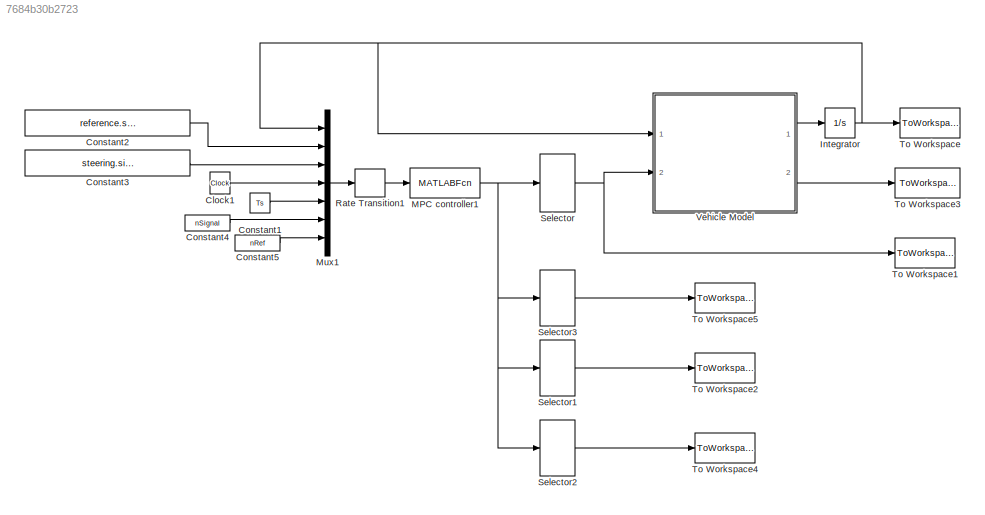
MODEL slx_7684b30b2723
KIND model
CONFIG AbsTol = auto
CONFIG EnableMultiTasking = off
CONFIG FixedStep = Ts
CONFIG MaxStep = auto
CONFIG MinStep = auto
CONFIG RelTol = 1e-3
CONFIG SampleTimeConstraint = Unconstrained
CONFIG Solver = FixedStepAuto
CONFIG SolverName = FixedStepAuto
CONFIG StartTime = 0.0
CONFIG StopTime = Tsim
BLOCK [Clock] Clock1
BLOCK [Constant] Constant1
  Value = Ts
BLOCK [Constant] Constant2
  SampleTime = Ts
  Value = reference.signals.values(:)
BLOCK [Constant] Constant3
  SampleTime = Ts
  Value = steering.signals.values
BLOCK [Constant] Constant4
  Value = nSignal
BLOCK [Constant] Constant5
  Value = nRef
BLOCK [Integrator] Integrator
  InitialCondition = x0
  Ports = [1, 1]
BLOCK [MATLABFcn] MPC controller1
  MATLABFcn = mpcControllerKoop(u(1:3), u(4:4+nSignal*nRef-1), u(4+nSignal*nRef:4+nSignal*nRef+nSignal-1), u(4+nSignal*nRef+nSignal),u(4+nSignal*nRef+nSignal+1),u(end-1),u(end))
  OutputDimensions = 5 + 3
  Ports = [1, 1]
BLOCK [Mux] Mux1
  DisplayOption = bar
  Inputs = 7
  Ports = [7, 1]
BLOCK [RateTransition] Rate Transition1
  OutPortSampleTime = Ts
BLOCK [Selector] Selector
  IndexOptions = Index vector (dialog)
  Indices = [1 2 3 4 5]
  InputPortWidth = 8
  OutputSizes = 1
  Ports = [1, 1]
BLOCK [Selector] Selector1
  IndexOptions = Index vector (dialog)
  Indices = 7
  InputPortWidth = 8
  OutputSizes = 1
  Ports = [1, 1]
BLOCK [Selector] Selector2
  IndexOptions = Index vector (dialog)
  Indices = 8
  InputPortWidth = 8
  OutputSizes = 1
  Ports = [1, 1]
BLOCK [Selector] Selector3
  IndexOptions = Index vector (dialog)
  Indices = 6
  InputPortWidth = 8
  OutputSizes = 1
  Ports = [1, 1]
BLOCK [ToWorkspace] To Workspace
  FixptAsFi = on
  MaxDataPoints = inf
  Ports = [1]
  SampleTime = Ts
  Save2DSignal = 3-D array (concatenate along third dimension)
  SaveFormat = Structure With Time
  VariableName = states
BLOCK [ToWorkspace] To Workspace1
  FixptAsFi = on
  MaxDataPoints = inf
  Ports = [1]
  SampleTime = Ts
  Save2DSignal = 3-D array (concatenate along third dimension)
  SaveFormat = Structure With Time
  VariableName = input
BLOCK [ToWorkspace] To Workspace2
  FixptAsFi = on
  MaxDataPoints = inf
  Ports = [1]
  SampleTime = Ts
  Save2DSignal = 3-D array (concatenate along third dimension)
  SaveFormat = Structure With Time
  VariableName = status_val
BLOCK [ToWorkspace] To Workspace3
  FixptAsFi = on
  MaxDataPoints = inf
  Ports = [1]
  SampleTime = Ts
  Save2DSignal = 3-D array (concatenate along third dimension)
  SaveFormat = Structure With Time
  VariableName = slipAngles
BLOCK [ToWorkspace] To Workspace4
  FixptAsFi = on
  MaxDataPoints = inf
  Ports = [1]
  SampleTime = Ts
  Save2DSignal = 3-D array (concatenate along third dimension)
  SaveFormat = Structure With Time
  VariableName = duration
BLOCK [ToWorkspace] To Workspace5
  FixptAsFi = on
  MaxDataPoints = inf
  Ports = [1]
  SampleTime = Ts
  Save2DSignal = 3-D array (concatenate along third dimension)
  SaveFormat = Structure With Time
  VariableName = objective
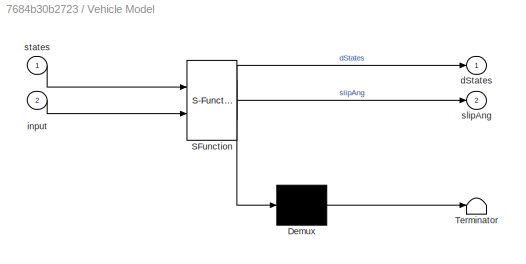
BLOCK [SubSystem] Vehicle Model
  ErrorFcn = Stateflow.Translate.translate
  PermitHierarchicalResolution = ExplicitOnly
  Ports = [2, 2]
  RequestExecContextInheritance = off
  SFBlockType = MATLAB Function
  TreatAsAtomicUnit = on
BLOCK [Demux] Vehicle Model/ Demux 
  Outputs = 1
  Ports = [1, 1]
BLOCK [S-Function] Vehicle Model/ SFunction 
  EnableBusSupport = on
  FunctionName = sf_sfun
  PortCounts = [2 3]
  Ports = [2, 3]
  SFcnIsStateOwnerBlock = off
  SFunctionDeploymentMode = off
  Tag = Stateflow S-Function ControlLoopSimKoopman 2
BLOCK [Terminator] Vehicle Model/ Terminator 
BLOCK [Outport] Vehicle Model/dStates
  IconDisplay = Port number
BLOCK [Inport] Vehicle Model/input
  IconDisplay = Port number
  Port = 2
BLOCK [Outport] Vehicle Model/slipAng
  IconDisplay = Port number
  Port = 2
BLOCK [Inport] Vehicle Model/states
  IconDisplay = Port number
LINE Clock1:1 -> Mux1:4
LINE Constant1:1 -> Mux1:5
LINE Constant2:1 -> Mux1:2
LINE Constant3:1 -> Mux1:3
LINE Constant4:1 -> Mux1:6
LINE Constant5:1 -> Mux1:7
NET Integrator:1 -> Mux1:1, To Workspace:1, Vehicle Model:1
NET MPC controller1:1 -> Selector1:1, Selector2:1, Selector3:1, Selector:1
LINE Mux1:1 -> Rate Transition1:1
LINE Rate Transition1:1 -> MPC controller1:1
LINE Selector1:1 -> To Workspace2:1
LINE Selector2:1 -> To Workspace4:1
LINE Selector3:1 -> To Workspace5:1
NET Selector:1 -> To Workspace1:1, Vehicle Model:2
LINE Vehicle Model:1 -> Integrator:1
LINE Vehicle Model:2 -> To Workspace3:1
note: NET lines group one-source signal fan-out (src -> all destinations, sorted); 1:1 wires keep LINE
CHART Vehicle Model states=1 transitions=1
  STATE_LABEL 'eML_blk_kernel()'
  STATE_LABEL 'SCRIPT:\nfunction [dStates, slipAng] = VehicleModel(states, input)\n% VEHICLE MODEL \n%   The function accepts current system states and inputs, and calculates \n%   state derivatives.\n\n% States and input definition\n\nvx = states(1);\nvy = states(2);\nomega = states(3);\n\ndeltaF = input(1);\nsfl = input(2);\nsfr = input(3);\nsrl = input(4);\nsrr = input(5);\n\n% Initialize vehicle parameters\nvehicle = LoadVehic...<+1746ch>'
